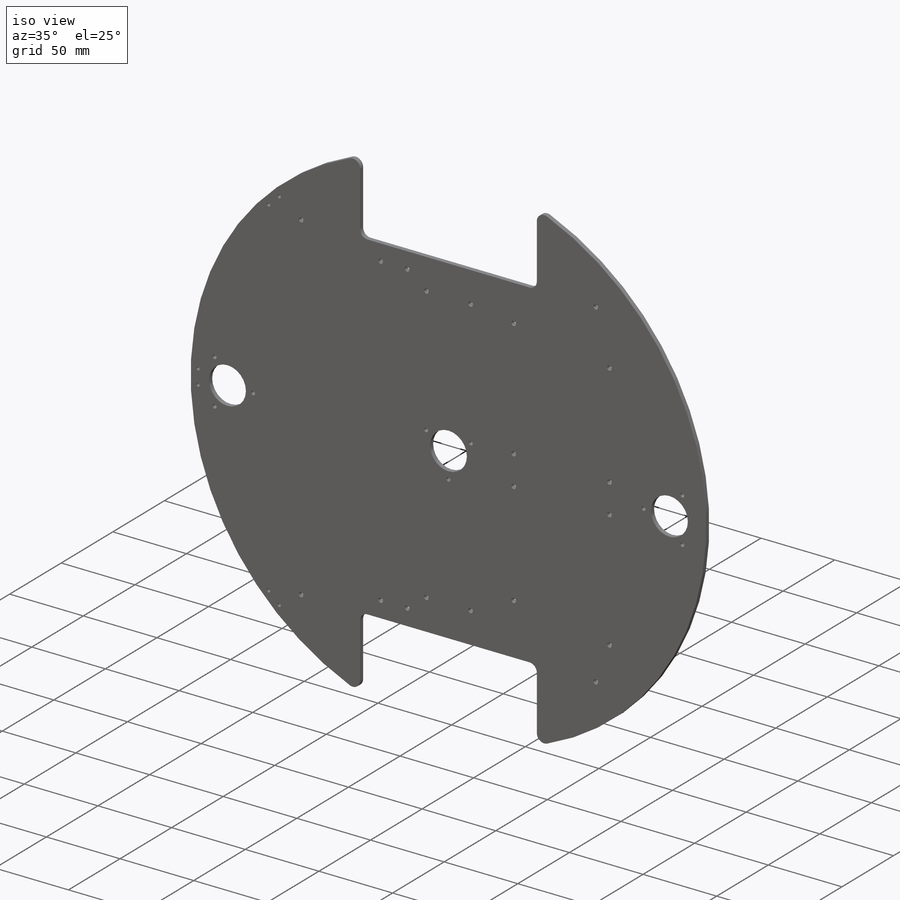
[diagram: iso view]
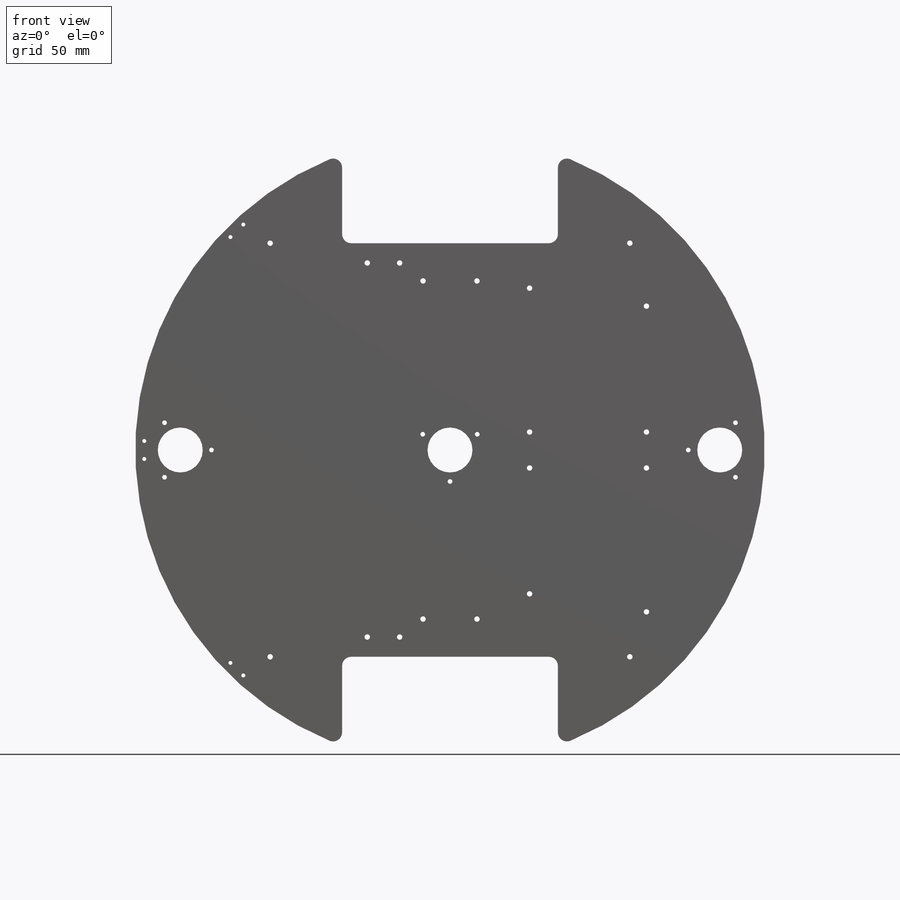
[diagram: front view]
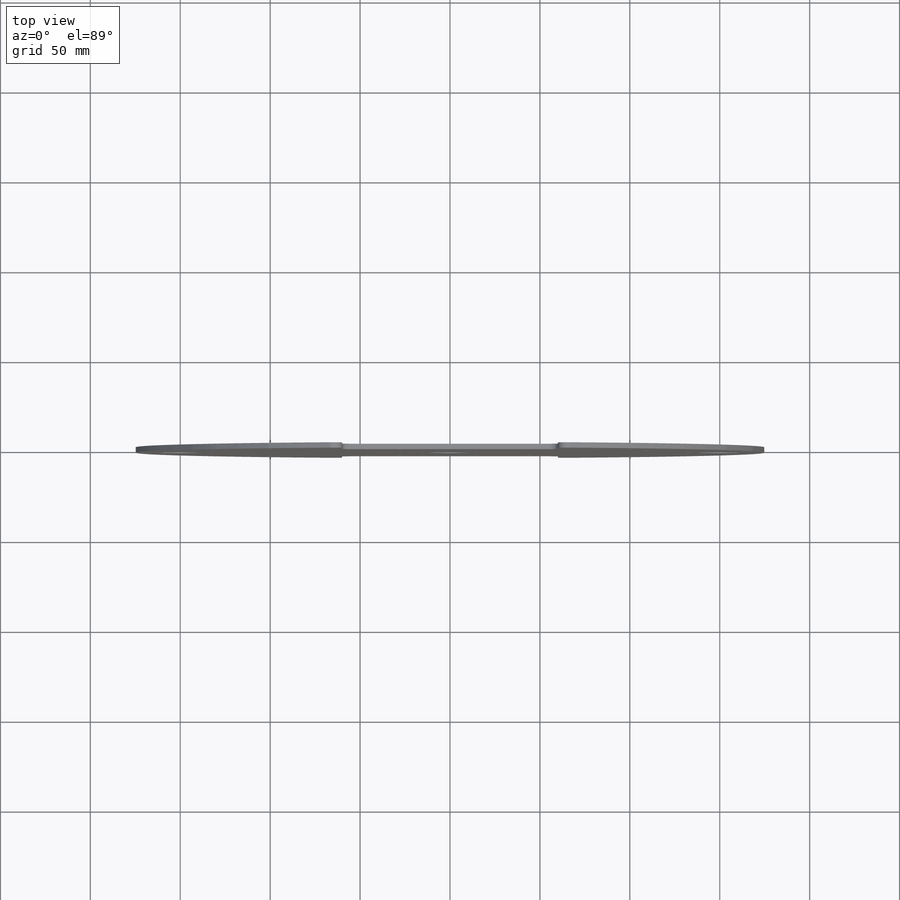
[diagram: top view]
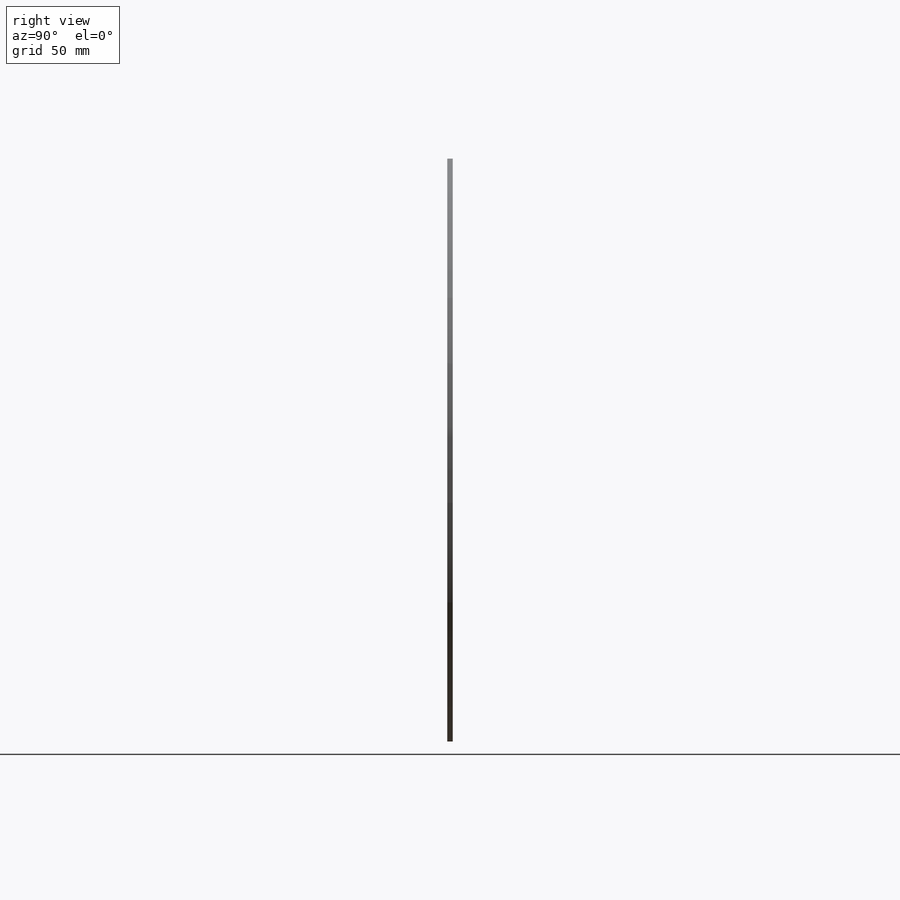
[diagram: right view]
SOLIDWORKS PART (.sldprt)
format: sldprt  version: not decoded by parser v0  size: 521,728 bytes
history: native  units: mm
features: sketch x8, cut_extrude x7, plane x3, fillet x3, material x1, extrude x1 + 2 further entries (+8 scaffold rows collapsed)
feature tree (33):
  scaffold x8  (default folders/planes/origin — collapsed)
  material  "ｱｸﾘﾙ (中-上級の耐衝撃性)"
  "ｻｰﾌｪｽ ﾎﾞﾃﾞｨ"
  "ｿﾘｯﾄﾞ ﾎﾞﾃﾞｨ"
  plane  "正面"
  plane  "平面"
  plane  "右側面"
  sketch  "ｽｹｯﾁ1"  dims[D1=350.0mm]
  extrude  "ﾎﾞｽ - 押し出し1"  Depth=3mm
  sketch  "ｽｹｯﾁ2"  dims[D1=115.0mm D2=60.0mm D3=60.0mm D4=60.0mm D5=115.0mm D6=60.0mm]
  cut_extrude  "ｶｯﾄ - 押し出し1"  Depth=3mm
  fillet  "ﾌｨﾚｯﾄ1"  Radius=5mm
  fillet  "ﾌｨﾚｯﾄ2"  Radius=5mm
  fillet  "ﾌｨﾚｯﾄ3"  Radius=5mm
  sketch  "ｽｹｯﾁ5"  dims[D3=3.0mm D4=3.0mm D5=3.0mm D6=3.0mm D1=100.0mm D2=100.0mm]
  cut_extrude  "ｶｯﾄ - 押し出し4"  Depth=3mm
  sketch  "ｽｹｯﾁ10"  dims[c1.D3=25.0mm c1.D4=25.0mm c1.D5=25.0mm c1.D6=35.0mm c1.D7=35.0mm c1.D8=35.0mm c1.D15=2.6mm c1.D16=2.6mm c1.D17=2.6mm c1.D18=2.6mm c1.D19=2.6mm c1.D20=2.6mm c1.D21=2.6mm c1.D22=2.6mm c1.D23=2.6mm c2.D15=2.6mm c2.D16=2.6mm c2.D17=2.6mm c2.D1=150.0mm c2.D2=150.0mm c2.D9=~16.617302mm c3.D9=120.0deg c3.D10=17.5mm c4.D10=120.0deg c4.D11=~8.828973mm c5.D11=120.0deg c5.D12=17.5mm c6.D12=120.0deg c6.D13=17.5mm c7.D13=120.0deg c7.D14=~4.077588mm c8.D14=120.0deg c8.D9=150.0mm c9.D9=120.0deg c9.D10=150.0mm c10.D10=120.0deg c10.D16=150.0mm]
  sketch  "ｽｹｯﾁ12"  dims[c1.D5=3.0mm c1.D6=3.0mm c1.D7=3.0mm c1.D8=3.0mm c1.D11=3.0mm c1.D12=3.0mm c1.D13=3.0mm c1.D14=3.0mm c1.D1=21.0mm c1.D2=15.0mm c1.D3=15.0mm c1.D4=50.0mm c1.D9=21.0mm c1.D10=50.0mm c1.D15=18.0mm c2.D4=15.0mm c2.D7=15.0mm]
  sketch  "ｽｹｯﾁ13"  dims[c1.D6=3.0mm c1.D7=3.0mm c1.D8=3.0mm c1.D9=3.0mm c1.D13=3.0mm c1.D14=3.0mm c1.D15=3.0mm c1.D16=3.0mm c1.D1=25.0mm c1.D2=11.0mm c1.D3=3.0mm c1.D4=24.0mm c1.D5=29.0mm c1.D10=28.0mm c1.D11=11.0mm c1.D12=29.0mm c2.D4=18.0mm c2.D5=18.0mm]
  cut_extrude  "ｶｯﾄ - 押し出し13"  Depth=10mm
  sketch  "ｽｹｯﾁ14"  dims[c1.D4=2.2mm c1.D5=2.2mm c1.D14=2.2mm c1.D15=2.2mm c1.D16=2.2mm c1.D17=2.2mm c1.D1=170.0mm c1.D2=5.0mm c1.D3=5.0mm c1.D6=~141.741512mm c2.D6=45.8deg c2.D7=170.0mm c3.D7=45.8deg c3.D8=170.0mm c3.D9=170.0mm c3.D10=5.0mm c3.D11=5.0mm c3.D12=5.0mm c3.D13=5.0mm]
  cut_extrude  "ｶｯﾄ - 押し出し14"  Depth=10mm
  cut_extrude  "ｶｯﾄ - 押し出し17"  Depth=10mm
  cut_extrude  "ｶｯﾄ - 押し出し18"  Depth=5mm
  sketch  "ｽｹｯﾁ15"  dims[c1.D1=3.0mm c1.D2=3.0mm c1.D3=3.0mm c1.D4=3.0mm c1.D5=3.0mm c1.D6=3.0mm c1.D7=3.0mm c1.D8=3.0mm c1.D10=3.0mm c1.D11=3.0mm c1.D12=3.0mm c1.D13=3.0mm c1.D14=3.0mm c1.D15=3.0mm c1.D16=3.0mm c1.D9=3.0mm c1.D17=3.0mm c2.D14=3.0mm c2.D16=3.0mm c2.D2=10.0mm c2.D4=80.0mm c2.D6=65.0mm c2.D8=70.0mm c2.D9=20.0mm c2.D12=65.0mm c3.D14=80.0mm c3.D16=70.0mm c3.D9=10.0mm c3.D17=80.0mm c4.D14=70.0mm c4.D16=80.0mm]
  cut_extrude  "ｶｯﾄ - 押し出し19"  [1 undecoded]
decode coverage: 18 of 19 modeling features carry decoded parameters; 2 rows unclassified (native names shown)
note: ~ marks probable driven/reference dimensions
note: 1 parameter value undecoded
note: suppression state not decoded; provenance and decode notes live in map.json
